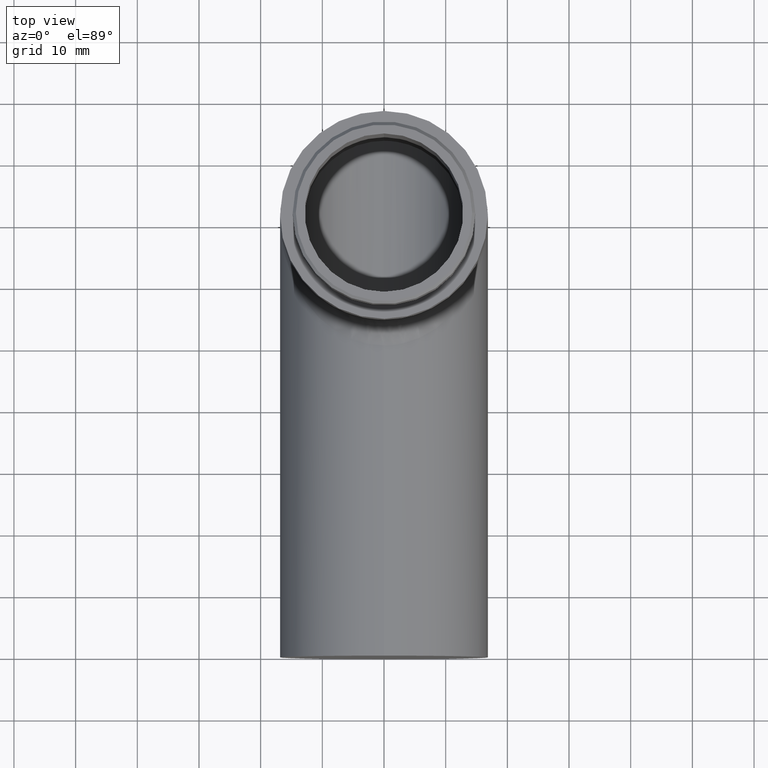
[diagram: clean part render]
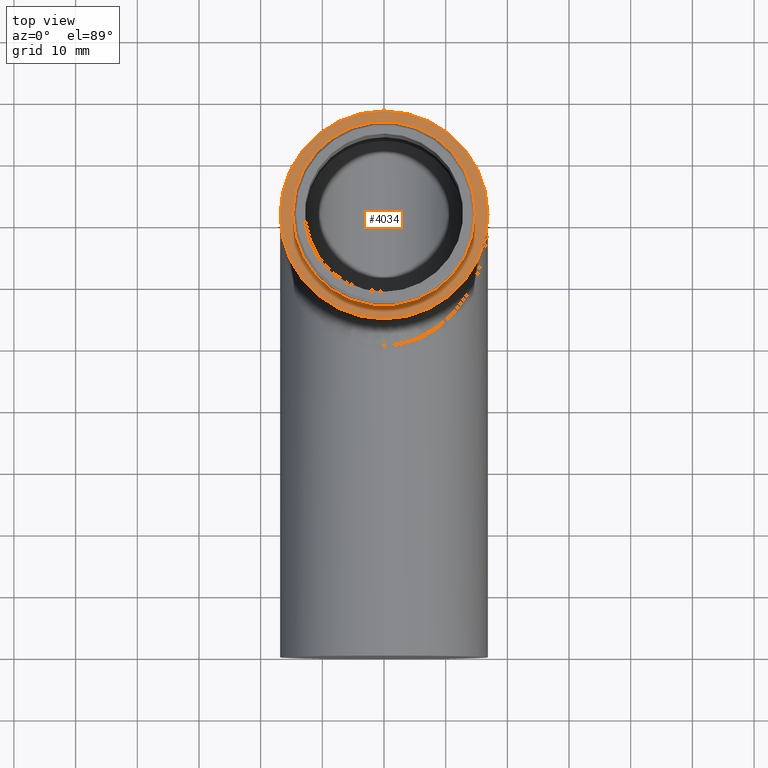
[diagram: same view with one face highlighted and labeled with its STEP entity id]
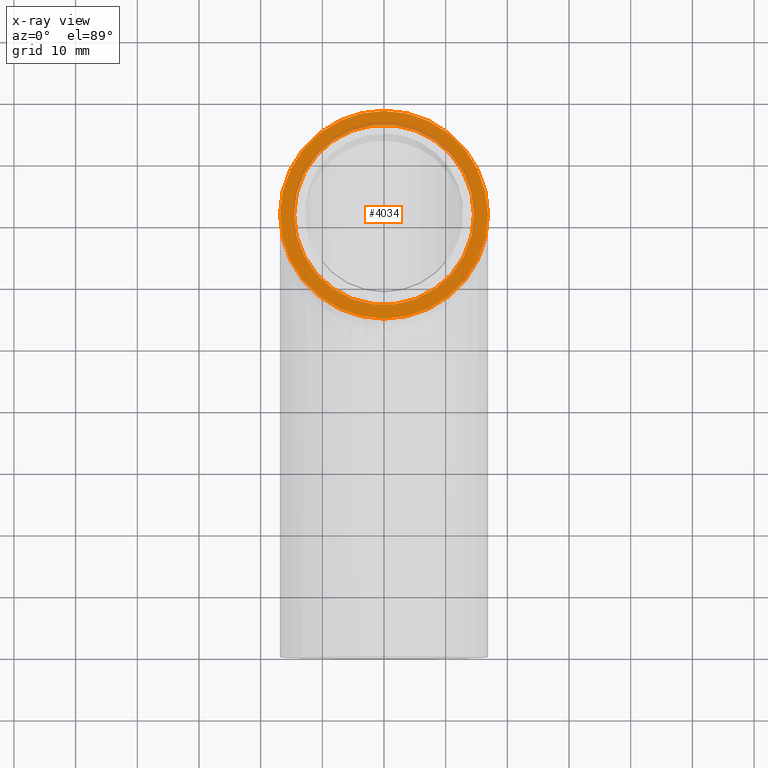
[diagram: x-ray of the same camera — body ghosted, the highlighted face saturated]
A machine part, top view. The second image highlights one B-rep face of the part: STEP entity #4034.
The next image is the same camera in x-ray: the body ghosted, the highlighted face saturated — about 10% of this face is hidden behind the body in this view.
In plain terms, the highlighted planar face has unit normal (0, 0, 1).
Its self-contained STEP definition (entity closure, byte-faithful):
#316 = VERTEX_POINT ( 'NONE', #11181 ) ;
#764 = DIRECTION ( 'NONE',  ( 1.000000000000000000, 0.000000000000000000, 0.000000000000000000 ) ) ;
#1710 = EDGE_LOOP ( 'NONE', ( #3527, #2927 ) ) ;
#1961 = DIRECTION ( 'NONE',  ( 0.000000000000000000, 0.000000000000000000, 1.000000000000000000 ) ) ;
#2140 = DIRECTION ( 'NONE',  ( -0.000000000000000000, -2.668805347656626185E-16, -1.000000000000000000 ) ) ;
#2417 = CIRCLE ( 'NONE', #14322, 14.59999999999999964 ) ;
#2871 = PLANE ( 'NONE',  #10787 ) ;
#2927 = ORIENTED_EDGE ( 'NONE', *, *, #7452, .F. ) ;
#3223 = DIRECTION ( 'NONE',  ( 0.000000000000000000, -1.000000000000000000, 4.118037925167493546E-16 ) ) ;
#3266 = CARTESIAN_POINT ( 'NONE',  ( 0.000000000000000000, 71.15000000000000568, 35.14999999999999858 ) ) ;
#3527 = ORIENTED_EDGE ( 'NONE', *, *, #11170, .F. ) ;
#3589 = CARTESIAN_POINT ( 'NONE',  ( 2.063529856563291822E-15, 88.00000000000001421, 35.14999999999999147 ) ) ;
#3745 = EDGE_CURVE ( 'NONE', #316, #4274, #12338, .T. ) ;
#4034 = ADVANCED_FACE ( 'NONE', ( #6091, #12905 ), #2871, .T. ) ;
#4129 = VERTEX_POINT ( 'NONE', #6672 ) ;
#4274 = VERTEX_POINT ( 'NONE', #3589 ) ;
#4639 = CIRCLE ( 'NONE', #7276, 14.59999999999999964 ) ;
#5200 = CIRCLE ( 'NONE', #13680, 16.85000000000000497 ) ;
#6091 = FACE_OUTER_BOUND ( 'NONE', #15326, .T. ) ;
#6207 = AXIS2_PLACEMENT_3D ( 'NONE', #12986, #2140, #9354 ) ;
#6471 = DIRECTION ( 'NONE',  ( 0.000000000000000000, -1.000000000000000000, 2.668805347656626185E-16 ) ) ;
#6672 = CARTESIAN_POINT ( 'NONE',  ( 14.59999999999999964, 71.15000000000000568, 35.15000000000001990 ) ) ;
#6834 = DIRECTION ( 'NONE',  ( -0.000000000000000000, -2.668805347656626185E-16, -1.000000000000000000 ) ) ;
#7276 = AXIS2_PLACEMENT_3D ( 'NONE', #10264, #1961, #11440 ) ;
#7452 = EDGE_CURVE ( 'NONE', #4129, #7924, #2417, .T. ) ;
#7536 = ORIENTED_EDGE ( 'NONE', *, *, #3745, .F. ) ;
#7924 = VERTEX_POINT ( 'NONE', #9915 ) ;
#8664 = ORIENTED_EDGE ( 'NONE', *, *, #12377, .F. ) ;
#8897 = CARTESIAN_POINT ( 'NONE',  ( 0.000000000000000000, 71.15000000000000568, 35.14999999999999858 ) ) ;
#9354 = DIRECTION ( 'NONE',  ( 0.000000000000000000, -1.000000000000000000, 4.118037925167493546E-16 ) ) ;
#9915 = CARTESIAN_POINT ( 'NONE',  ( -14.59999999999999964, 71.15000000000000568, 35.15000000000001990 ) ) ;
#10113 = DIRECTION ( 'NONE',  ( 0.000000000000000000, 2.668805347656626185E-16, 1.000000000000000000 ) ) ;
#10264 = CARTESIAN_POINT ( 'NONE',  ( 0.000000000000000000, 71.15000000000000568, 35.15000000000001990 ) ) ;
#10787 = AXIS2_PLACEMENT_3D ( 'NONE', #8897, #10113, #6471 ) ;
#11170 = EDGE_CURVE ( 'NONE', #7924, #4129, #4639, .T. ) ;
#11181 = CARTESIAN_POINT ( 'NONE',  ( 0.000000000000000000, 54.30000000000000426, 35.15000000000000568 ) ) ;
#11440 = DIRECTION ( 'NONE',  ( 1.000000000000000000, 0.000000000000000000, 0.000000000000000000 ) ) ;
#11612 = DIRECTION ( 'NONE',  ( 0.000000000000000000, 0.000000000000000000, 1.000000000000000000 ) ) ;
#12338 = CIRCLE ( 'NONE', #6207, 16.85000000000000497 ) ;
#12377 = EDGE_CURVE ( 'NONE', #4274, #316, #5200, .T. ) ;
#12905 = FACE_BOUND ( 'NONE', #1710, .T. ) ;
#12986 = CARTESIAN_POINT ( 'NONE',  ( 0.000000000000000000, 71.15000000000000568, 35.14999999999999858 ) ) ;
#13680 = AXIS2_PLACEMENT_3D ( 'NONE', #3266, #6834, #3223 ) ;
#14322 = AXIS2_PLACEMENT_3D ( 'NONE', #15394, #11612, #764 ) ;
#15326 = EDGE_LOOP ( 'NONE', ( #7536, #8664 ) ) ;
#15394 = CARTESIAN_POINT ( 'NONE',  ( 0.000000000000000000, 71.15000000000000568, 35.15000000000001990 ) ) ;